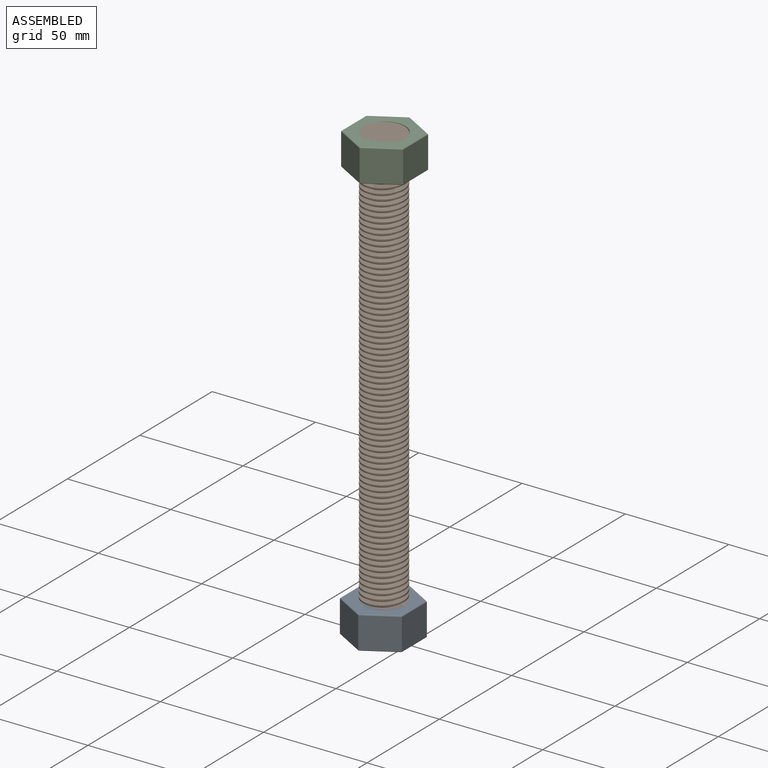
[diagram: assembled view]
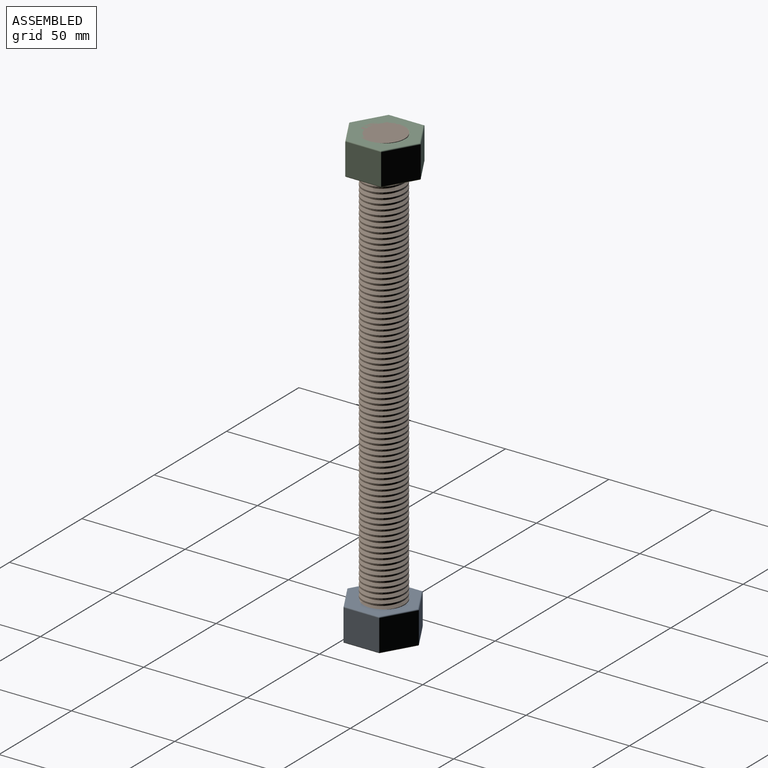
[diagram: assembled view, second angle]
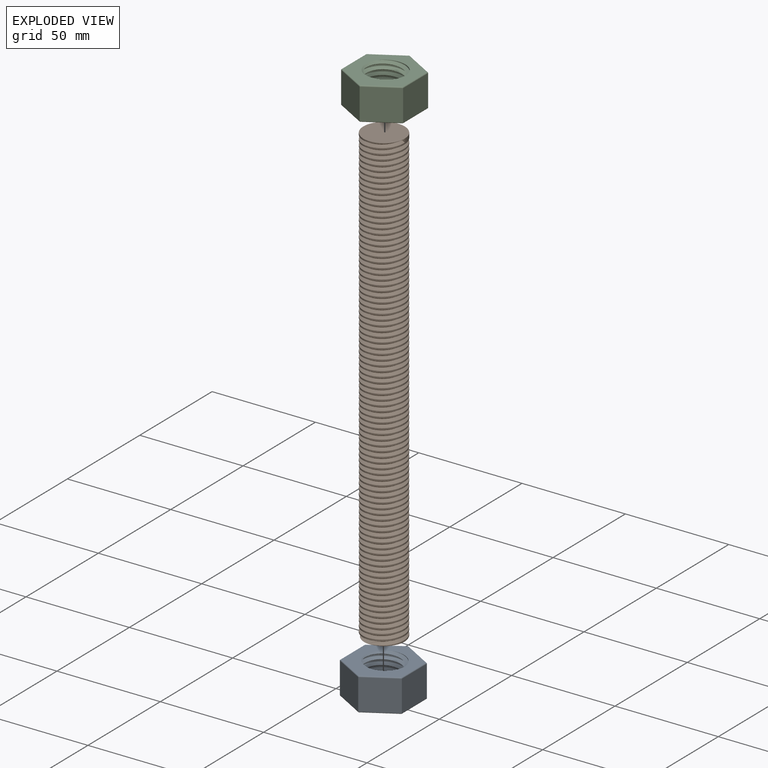
[diagram: exploded view]
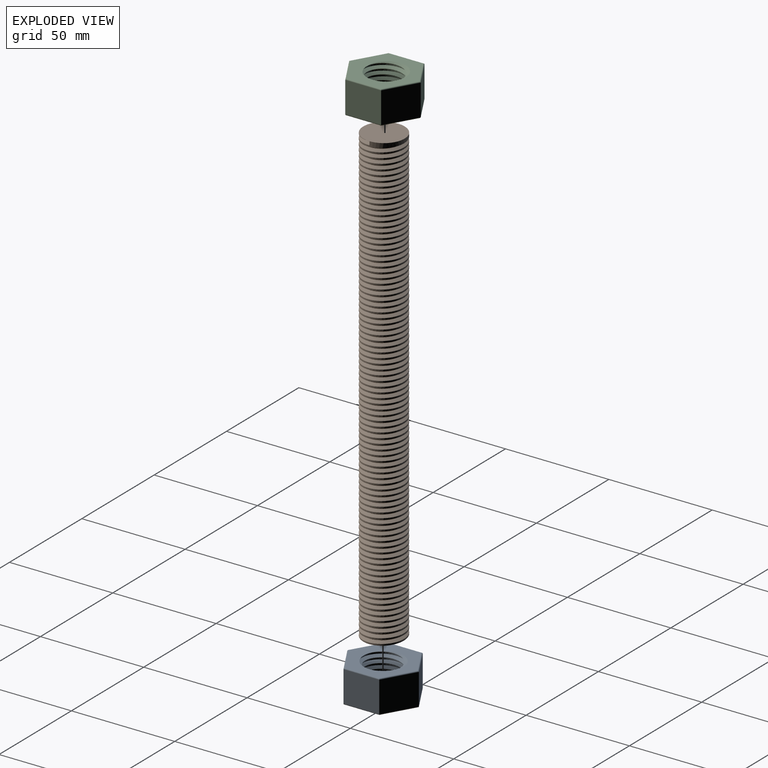
[diagram: exploded view, second angle]
ASSEMBLY  parts=3 mates=2
PART A: 23 faces, bbox 30.9x35.6x19.3 mm
  f0: plane 34.4x29.91mm, normal (0,0,1), area 446.6mm2, adj f14,f15,f16,f17,f18,f19,f20,f21
  f1: plane 34.41x29.93mm, normal (0,0,-1), area 446.6mm2, adj f8,f9,f10,f11,f12,f13,f20,f21
  f2: plane 15x15mm, normal (0.5,0.87,0), area 259.8mm2, adj f3,f7,f9,f15
  f3: plane 15x15mm, normal (-0.5,0.87,0), area 259.8mm2, adj f2,f4,f8,f14
  f4: plane 17.32x15mm, normal (-1,0,0), area 259.8mm2, adj f3,f5,f10,f16
  f5: plane 15x15mm, normal (-0.5,-0.87,0), area 259.8mm2, adj f4,f6,f12,f18
  f6: plane 15x15mm, normal (0.5,-0.87,0), area 259.8mm2, adj f5,f7,f13,f19
  f7: plane 17.32x15mm, normal (1,0,0), area 259.8mm2, adj f2,f6,f11,f17
  f8: cylinder r=0.5mm len=15.25mm, axis (-0.87,-0.5,0), area 13.4mm2, adj f1,f3,f9,f10
  f9: cylinder r=0.5mm len=15.25mm, axis (-0.87,0.5,0), area 13.4mm2, adj f1,f2,f8,f11
  f10: cylinder r=0.5mm len=17.32mm, axis (0,-1,0), area 13.4mm2, adj f1,f4,f8,f12
  f11: cylinder r=0.5mm len=17.32mm, axis (0,1,0), area 13.4mm2, adj f1,f7,f9,f13
  f12: cylinder r=0.5mm len=15.25mm, axis (0.87,-0.5,0), area 13.4mm2, adj f1,f5,f10,f13
  f13: cylinder r=0.5mm len=15.25mm, axis (0.87,0.5,0), area 13.4mm2, adj f1,f6,f11,f12
  f14: cylinder r=0.5mm len=15.25mm, axis (0.87,0.5,0), area 13.4mm2, adj f0,f3,f15,f16
  f15: cylinder r=0.5mm len=15.25mm, axis (0.87,-0.5,0), area 13.4mm2, adj f0,f2,f14,f17
  f16: cylinder r=0.5mm len=17.32mm, axis (0,1,0), area 13.4mm2, adj f0,f4,f14,f18
  f17: cylinder r=0.5mm len=17.32mm, axis (0,-1,0), area 13.4mm2, adj f0,f7,f15,f19
  f18: cylinder r=0.5mm len=15.25mm, axis (-0.87,0.5,0), area 13.4mm2, adj f0,f5,f16,f19
  f19: cylinder r=0.5mm len=15.25mm, axis (-0.87,-0.5,0), area 13.4mm2, adj f0,f6,f17,f18
  f20: cylinder r=10mm len=20mm, axis (0,0,-1), area 350.1mm2, adj f0,f1,f21,f22
  f21: bspline ~23.09x20mm, area 659.1mm2, adj f0,f1,f20,f22
  f22: bspline ~23.09x20mm, area 657.5mm2, adj f0,f1,f20,f21
PART B: 8 faces, bbox 20.9x24x221.9 mm
  f0: cylinder r=10mm len=220mm, axis (0,0,-1), area -667.6mm2, adj f1,f2,f3,f4,f5
  f1: plane 20x20mm, normal (0,0,1), area 314.2mm2, adj f0
  f2: plane 20.06x19.89mm, normal (0,0,-1), area 281mm2, adj f0,f3,f4,f6
  f3: bspline ~220.05x23.09mm, area 9002.3mm2, adj f0,f2,f4,f5
  f4: bspline ~220.89x23.09mm, area 9014.6mm2, adj f0,f2,f3,f5
  f5: plane 1.77x1.53mm, normal (0,-1,0), area 1.4mm2, adj f0,f3,f4
  f6: cylinder r=0.5mm len=1mm, axis (0,0,-1), area 3.1mm2, adj f2,f7
  f7: cone r=0mm half-angle=59deg, axis (0,0,-1), area 0.9mm2, adj f6
PART C: same geometry as A
PLACE A rot(axis=(1,0,0),180deg) t=(5524.4,2147.92,1344.65)mm
PLACE B t=(5524.41,2148.36,1328.65)mm
PLACE C t=(5524.4,2148.79,1532.65)mm
MATE fastened C.f0 <-> B.f0  axis (0,0,1) through (5524.41,2148.36,1548.65)mm
MATE fastened A.f0 <-> B.f0  axis (0,0,-1) through (5524.41,2148.36,1328.65)mm
